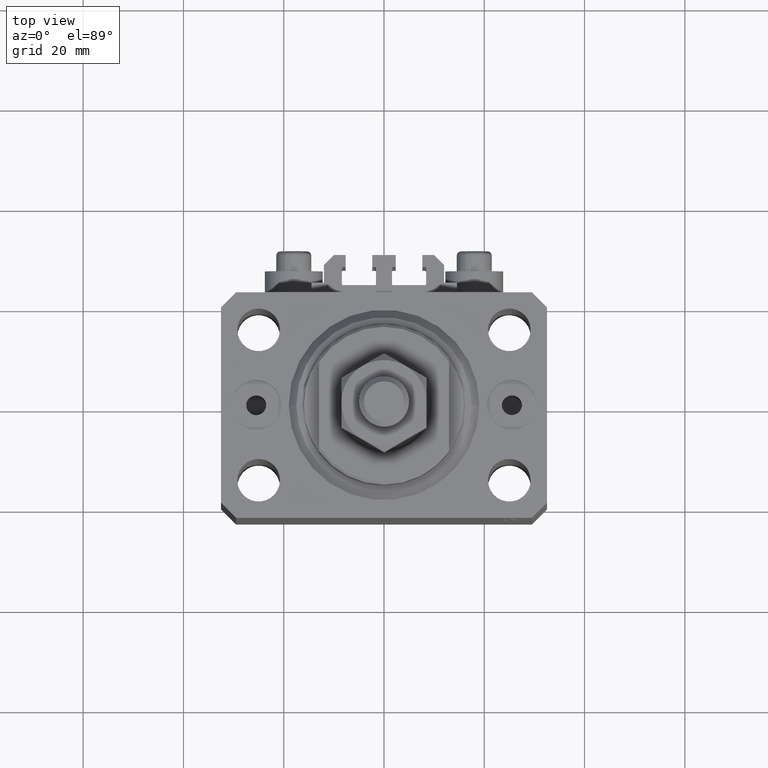
[diagram: clean part render]
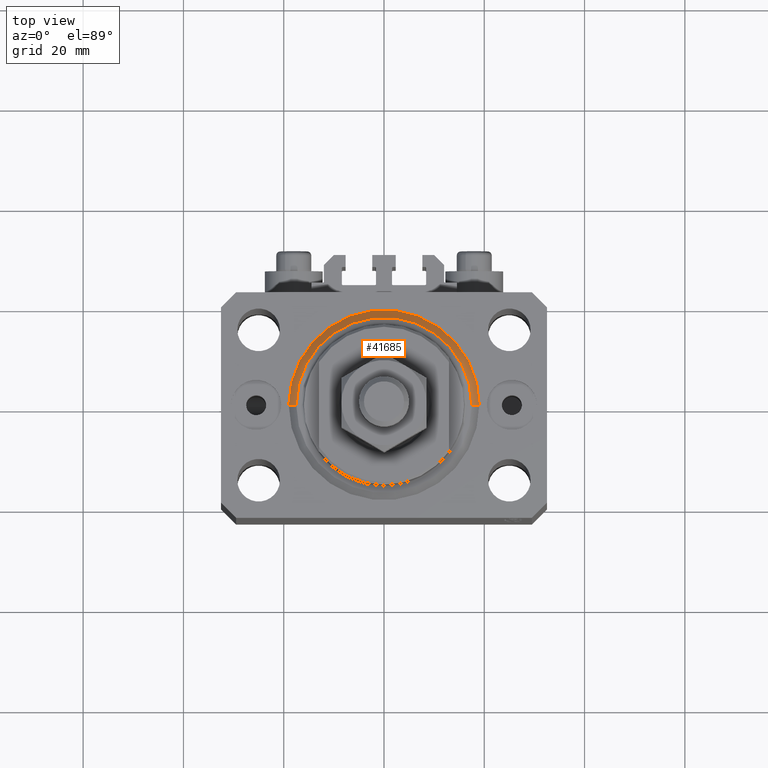
[diagram: same view with one face highlighted and labeled with its STEP entity id]
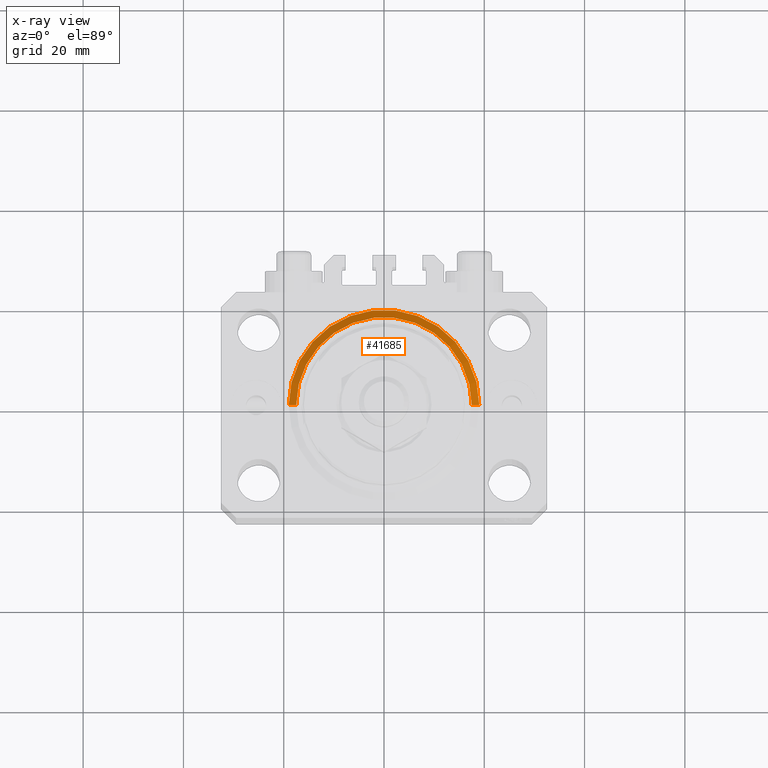
[diagram: x-ray of the same camera — body ghosted, the highlighted face saturated]
A machine part, top view. The second image highlights one B-rep face of the part: STEP entity #41685.
The next image is the same camera in x-ray: the body ghosted, the highlighted face saturated — about 0% of this face is hidden behind the body in this view.
In plain terms, the highlighted conical surface has half-angle 45 deg.
Its self-contained STEP definition (entity closure, byte-faithful):
#1121 = EDGE_CURVE ( 'NONE', #30333, #37661, #34997, .T. ) ;
#1642 = CARTESIAN_POINT ( 'NONE',  ( 17.49999999999999645, 0.000000000000000000, 0.000000000000000000 ) ) ;
#3764 = ORIENTED_EDGE ( 'NONE', *, *, #34028, .F. ) ;
#3993 = FACE_OUTER_BOUND ( 'NONE', #21656, .T. ) ;
#5189 = AXIS2_PLACEMENT_3D ( 'NONE', #28361, #24909, #39976 ) ;
#7566 = DIRECTION ( 'NONE',  ( 0.7071067811865483499, 0.000000000000000000, 0.7071067811865467956 ) ) ;
#11744 = AXIS2_PLACEMENT_3D ( 'NONE', #31348, #34104, #16293 ) ;
#12370 = VERTEX_POINT ( 'NONE', #26482 ) ;
#13346 = CARTESIAN_POINT ( 'NONE',  ( 0.000000000000000000, 0.000000000000000000, 1.500000000000001332 ) ) ;
#13907 = ORIENTED_EDGE ( 'NONE', *, *, #1121, .F. ) ;
#13908 = CARTESIAN_POINT ( 'NONE',  ( -19.00000000000000000, 2.326828918379970970E-15, 1.500000000000001332 ) ) ;
#15888 = VERTEX_POINT ( 'NONE', #1642 ) ;
#16293 = DIRECTION ( 'NONE',  ( 1.000000000000000000, 0.000000000000000000, 0.000000000000000000 ) ) ;
#16561 = DIRECTION ( 'NONE',  ( -0.000000000000000000, -0.000000000000000000, 1.000000000000000000 ) ) ;
#18785 = CARTESIAN_POINT ( 'NONE',  ( 19.00000000000000000, 2.326828918379970970E-15, 1.500000000000001332 ) ) ;
#18828 = CARTESIAN_POINT ( 'NONE',  ( -19.00000000000000000, 0.000000000000000000, 1.500000000000001332 ) ) ;
#20278 = VECTOR ( 'NONE', #7566, 1000.000000000000000 ) ;
#21656 = EDGE_LOOP ( 'NONE', ( #3764, #47538, #13907, #44251 ) ) ;
#23022 = EDGE_CURVE ( 'NONE', #12370, #37661, #43774, .T. ) ;
#24909 = DIRECTION ( 'NONE',  ( -0.000000000000000000, -0.000000000000000000, -1.000000000000000000 ) ) ;
#26482 = CARTESIAN_POINT ( 'NONE',  ( -17.49999999999999645, 2.234980408443919215E-15, 0.000000000000000000 ) ) ;
#28361 = CARTESIAN_POINT ( 'NONE',  ( 0.000000000000000000, 0.000000000000000000, 0.000000000000000000 ) ) ;
#30333 = VERTEX_POINT ( 'NONE', #18785 ) ;
#31348 = CARTESIAN_POINT ( 'NONE',  ( 0.000000000000000000, 0.000000000000000000, 1.500000000000001332 ) ) ;
#32604 = DIRECTION ( 'NONE',  ( 1.000000000000000000, 0.000000000000000000, 0.000000000000000000 ) ) ;
#34028 = EDGE_CURVE ( 'NONE', #12370, #15888, #46132, .T. ) ;
#34104 = DIRECTION ( 'NONE',  ( -0.000000000000000000, -0.000000000000000000, 1.000000000000000000 ) ) ;
#34997 = CIRCLE ( 'NONE', #45216, 19.00000000000000000 ) ;
#37661 = VERTEX_POINT ( 'NONE', #18828 ) ;
#37740 = CONICAL_SURFACE ( 'NONE', #11744, 19.00000000000000000, 0.7853981633974492782 ) ;
#38060 = EDGE_CURVE ( 'NONE', #15888, #30333, #48492, .T. ) ;
#39976 = DIRECTION ( 'NONE',  ( 1.000000000000000000, 0.000000000000000000, 0.000000000000000000 ) ) ;
#40571 = DIRECTION ( 'NONE',  ( -0.7071067811865483499, 8.659560562354942719E-17, 0.7071067811865467956 ) ) ;
#41685 = ADVANCED_FACE ( 'NONE', ( #3993 ), #37740, .T. ) ;
#42004 = VECTOR ( 'NONE', #40571, 1000.000000000000000 ) ;
#43774 = LINE ( 'NONE', #13908, #42004 ) ;
#44251 = ORIENTED_EDGE ( 'NONE', *, *, #38060, .F. ) ;
#44310 = CARTESIAN_POINT ( 'NONE',  ( 19.00000000000000000, 0.000000000000000000, 1.500000000000001332 ) ) ;
#45216 = AXIS2_PLACEMENT_3D ( 'NONE', #13346, #16561, #32604 ) ;
#46132 = CIRCLE ( 'NONE', #5189, 17.49999999999999645 ) ;
#47538 = ORIENTED_EDGE ( 'NONE', *, *, #23022, .T. ) ;
#48492 = LINE ( 'NONE', #44310, #20278 ) ;